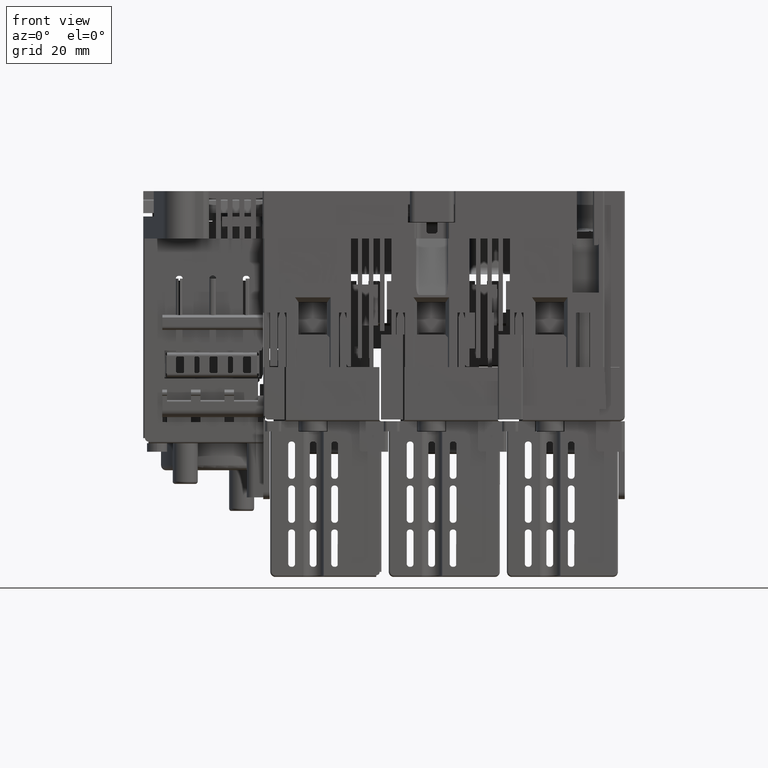
[diagram: clean part render]
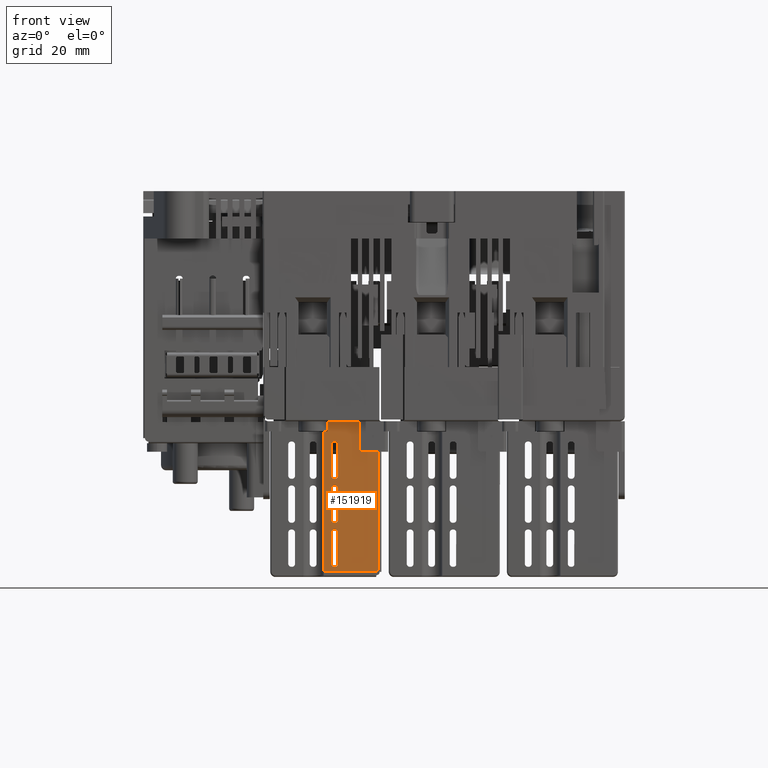
[diagram: same view with one face highlighted and labeled with its STEP entity id]
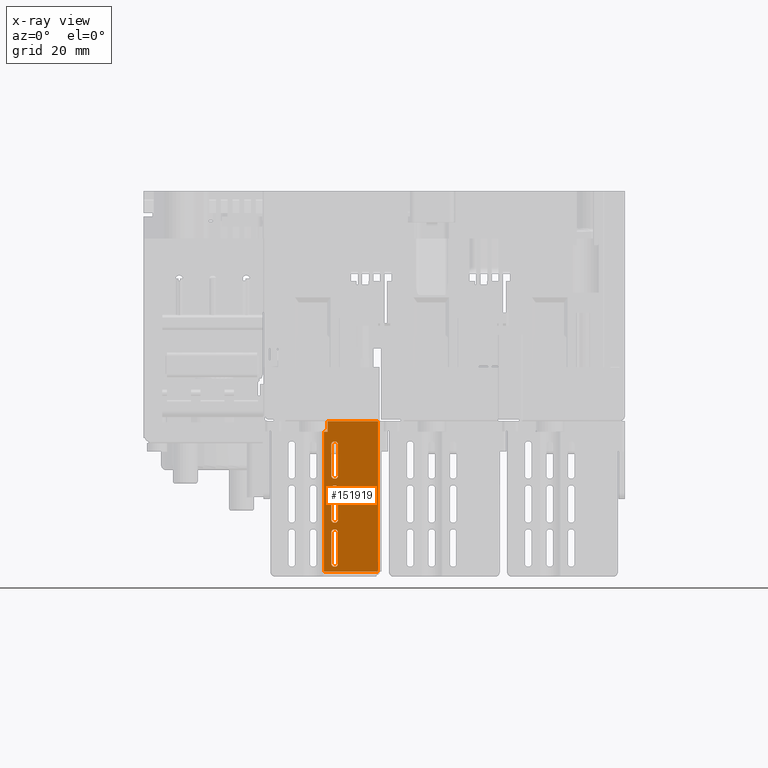
[diagram: x-ray of the same camera — body ghosted, the highlighted face saturated]
A machine part, front view. The second image highlights one B-rep face of the part: STEP entity #151919.
The next image is the same camera in x-ray: the body ghosted, the highlighted face saturated — about 0% of this face is hidden behind the body in this view.
In plain terms, the highlighted planar face has unit normal (0, 1, 0).
Its self-contained STEP definition (entity closure, byte-faithful):
#145148=DIRECTION('',(-1.E0,0.E0,0.E0));
#145149=VECTOR('',#145148,1.549840340681E1);
#145150=CARTESIAN_POINT('',(1.497967156549E2,3.683299690153E2,
7.999609065454E1));
#145151=LINE('',#145150,#145149);
#145152=DIRECTION('',(0.E0,0.E0,1.E0));
#145153=VECTOR('',#145152,4.139988030536E1);
#145154=CARTESIAN_POINT('',(1.342983122481E2,3.683299690153E2,
7.999609065454E1));
#145155=LINE('',#145154,#145153);
#145156=DIRECTION('',(1.E0,0.E0,0.E0));
#145157=VECTOR('',#145156,1.148383971600E0);
#145158=CARTESIAN_POINT('',(1.342983122481E2,3.683299690153E2,
1.213959709599E2));
#145159=LINE('',#145158,#145157);
#145160=DIRECTION('',(0.E0,0.E0,1.E0));
#145161=VECTOR('',#145160,3.100119694600E0);
#145162=CARTESIAN_POINT('',(1.354466962197E2,3.683299690153E2,
1.213959709599E2));
#145163=LINE('',#145162,#145161);
#145164=DIRECTION('',(1.E0,0.E0,0.E0));
#145165=VECTOR('',#145164,1.485001943520E1);
#145166=CARTESIAN_POINT('',(1.354466962197E2,3.683299690153E2,
1.244960906545E2));
#145167=LINE('',#145166,#145165);
#145168=CARTESIAN_POINT('',(1.502967156549E2,3.683299690153E2,
8.049609065453E1));
#145169=CARTESIAN_POINT('',(1.502953362128E2,3.683299690153E2,
8.042646805878E1));
#145170=CARTESIAN_POINT('',(1.502702316992E2,3.683299690153E2,
8.029899881478E1));
#145171=CARTESIAN_POINT('',(1.501593822654E2,3.683299690153E2,
8.013342404407E1));
#145172=CARTESIAN_POINT('',(1.499938074947E2,3.683299690153E2,
8.002257461028E1));
#145173=CARTESIAN_POINT('',(1.498663382507E2,3.683299690153E2,
7.999747009669E1));
#145174=CARTESIAN_POINT('',(1.497967156549E2,3.683299690153E2,
7.999609065454E1));
#145176=CARTESIAN_POINT('',(1.373967156549E2,3.683299690153E2,
1.184960906545E2));
#145177=CARTESIAN_POINT('',(1.372713949825E2,3.683299690153E2,
1.184936076586E2));
#145178=CARTESIAN_POINT('',(1.370419503433E2,3.683299690153E2,
1.184484195342E2));
#145179=CARTESIAN_POINT('',(1.367439157560E2,3.683299690153E2,
1.182488905533E2));
#145180=CARTESIAN_POINT('',(1.365443867752E2,3.683299690153E2,
1.179508559661E2));
#145181=CARTESIAN_POINT('',(1.364991986508E2,3.683299690153E2,
1.177214113269E2));
#145182=CARTESIAN_POINT('',(1.364967156549E2,3.683299690153E2,
1.175960906545E2));
#145184=DIRECTION('',(0.E0,0.E0,-1.E0));
#145185=VECTOR('',#145184,9.199999991375E0);
#145186=CARTESIAN_POINT('',(1.364967156549E2,3.683299690153E2,
1.175960906545E2));
#145187=LINE('',#145186,#145185);
#145188=CARTESIAN_POINT('',(1.364967156549E2,3.683299690153E2,
1.083960906631E2));
#145189=CARTESIAN_POINT('',(1.364991986496E2,3.683299690153E2,
1.082707699908E2));
#145190=CARTESIAN_POINT('',(1.365443867718E2,3.683299690153E2,
1.080413253511E2));
#145191=CARTESIAN_POINT('',(1.367439157498E2,3.683299690153E2,
1.077432907619E2));
#145192=CARTESIAN_POINT('',(1.370419503351E2,3.683299690153E2,
1.075437617783E2));
#145193=CARTESIAN_POINT('',(1.372713949739E2,3.683299690153E2,
1.074985736516E2));
#145194=CARTESIAN_POINT('',(1.373967156462E2,3.683299690153E2,
1.074960906545E2));
#145196=DIRECTION('',(1.E0,0.E0,0.E0));
#145197=VECTOR('',#145196,2.000000086850E-1);
#145198=CARTESIAN_POINT('',(1.373967156462E2,3.683299690153E2,
1.074960906545E2));
#145199=LINE('',#145198,#145197);
#145200=CARTESIAN_POINT('',(1.375967156549E2,3.683299690153E2,
1.074960906545E2));
#145201=CARTESIAN_POINT('',(1.377220363273E2,3.683299690153E2,
1.074985736504E2));
#145202=CARTESIAN_POINT('',(1.379514809665E2,3.683299690153E2,
1.075437617748E2));
#145203=CARTESIAN_POINT('',(1.382495155538E2,3.683299690153E2,
1.077432907557E2));
#145204=CARTESIAN_POINT('',(1.384490445346E2,3.683299690153E2,
1.080413253429E2));
#145205=CARTESIAN_POINT('',(1.384942326590E2,3.683299690153E2,
1.082707699821E2));
#145206=CARTESIAN_POINT('',(1.384967156549E2,3.683299690153E2,
1.083960906545E2));
#145208=DIRECTION('',(0.E0,0.E0,1.E0));
#145209=VECTOR('',#145208,9.199999999981E0);
#145210=CARTESIAN_POINT('',(1.384967156549E2,3.683299690153E2,
1.083960906545E2));
#145211=LINE('',#145210,#145209);
#145212=CARTESIAN_POINT('',(1.384967156549E2,3.683299690153E2,
1.175960906545E2));
#145213=CARTESIAN_POINT('',(1.384942326590E2,3.683299690153E2,
1.177214113268E2));
#145214=CARTESIAN_POINT('',(1.384490445346E2,3.683299690153E2,
1.179508559661E2));
#145215=CARTESIAN_POINT('',(1.382495155537E2,3.683299690153E2,
1.182488905533E2));
#145216=CARTESIAN_POINT('',(1.379514809665E2,3.683299690153E2,
1.184484195342E2));
#145217=CARTESIAN_POINT('',(1.377220363272E2,3.683299690153E2,
1.184936076586E2));
#145218=CARTESIAN_POINT('',(1.375967156549E2,3.683299690153E2,
1.184960906545E2));
#145220=DIRECTION('',(-1.E0,0.E0,0.E0));
#145221=VECTOR('',#145220,2.000000000089E-1);
#145222=CARTESIAN_POINT('',(1.375967156549E2,3.683299690153E2,
1.184960906545E2));
#145223=LINE('',#145222,#145221);
#145224=CARTESIAN_POINT('',(1.373967156549E2,3.683299690153E2,
1.054960906545E2));
#145225=CARTESIAN_POINT('',(1.372713949826E2,3.683299690153E2,
1.054936076586E2));
#145226=CARTESIAN_POINT('',(1.370419503433E2,3.683299690153E2,
1.054484195342E2));
#145227=CARTESIAN_POINT('',(1.367439157561E2,3.683299690153E2,
1.052488905533E2));
#145228=CARTESIAN_POINT('',(1.365443867752E2,3.683299690153E2,
1.049508559661E2));
#145229=CARTESIAN_POINT('',(1.364991986508E2,3.683299690153E2,
1.047214113268E2));
#145230=CARTESIAN_POINT('',(1.364967156549E2,3.683299690153E2,
1.045960906545E2));
#145232=DIRECTION('',(0.E0,0.E0,-1.E0));
#145233=VECTOR('',#145232,9.200000009161E0);
#145234=CARTESIAN_POINT('',(1.364967156549E2,3.683299690153E2,
1.045960906545E2));
#145235=LINE('',#145234,#145233);
#145236=CARTESIAN_POINT('',(1.364967156549E2,3.683299690153E2,
9.539609064532E1));
#145237=CARTESIAN_POINT('',(1.364991986521E2,3.683299690153E2,
9.527076997299E1));
#145238=CARTESIAN_POINT('',(1.365443867789E2,3.683299690153E2,
9.504132533423E1));
#145239=CARTESIAN_POINT('',(1.367439157627E2,3.683299690153E2,
9.474329074900E1));
#145240=CARTESIAN_POINT('',(1.370419503521E2,3.683299690153E2,
9.454376177124E1));
#145241=CARTESIAN_POINT('',(1.372713949917E2,3.683299690153E2,
9.449857364911E1));
#145242=CARTESIAN_POINT('',(1.373967156641E2,3.683299690153E2,
9.449609065453E1));
#145244=DIRECTION('',(1.E0,0.E0,0.E0));
#145245=VECTOR('',#145244,1.999999907584E-1);
#145246=CARTESIAN_POINT('',(1.373967156641E2,3.683299690153E2,
9.449609065453E1));
#145247=LINE('',#145246,#145245);
#145248=CARTESIAN_POINT('',(1.375967156549E2,3.683299690153E2,
9.449609065453E1));
#145249=CARTESIAN_POINT('',(1.377220363272E2,3.683299690153E2,
9.449857365040E1));
#145250=CARTESIAN_POINT('',(1.379514809665E2,3.683299690153E2,
9.454376177487E1));
#145251=CARTESIAN_POINT('',(1.382495155537E2,3.683299690153E2,
9.474329075568E1));
#145252=CARTESIAN_POINT('',(1.384490445346E2,3.683299690153E2,
9.504132534296E1));
#145253=CARTESIAN_POINT('',(1.384942326590E2,3.683299690153E2,
9.527076998218E1));
#145254=CARTESIAN_POINT('',(1.384967156549E2,3.683299690153E2,
9.539609065455E1));
#145256=DIRECTION('',(0.E0,0.E0,1.E0));
#145257=VECTOR('',#145256,9.199999999935E0);
#145258=CARTESIAN_POINT('',(1.384967156549E2,3.683299690153E2,
9.539609065455E1));
#145259=LINE('',#145258,#145257);
#145260=CARTESIAN_POINT('',(1.384967156549E2,3.683299690153E2,
1.045960906545E2));
#145261=CARTESIAN_POINT('',(1.384942326590E2,3.683299690153E2,
1.047214113268E2));
#145262=CARTESIAN_POINT('',(1.384490445346E2,3.683299690153E2,
1.049508559661E2));
#145263=CARTESIAN_POINT('',(1.382495155537E2,3.683299690153E2,
1.052488905533E2));
#145264=CARTESIAN_POINT('',(1.379514809665E2,3.683299690153E2,
1.054484195342E2));
#145265=CARTESIAN_POINT('',(1.377220363273E2,3.683299690153E2,
1.054936076586E2));
#145266=CARTESIAN_POINT('',(1.375967156549E2,3.683299690153E2,
1.054960906545E2));
#145268=DIRECTION('',(-1.E0,0.E0,0.E0));
#145269=VECTOR('',#145268,1.999999999777E-1);
#145270=CARTESIAN_POINT('',(1.375967156549E2,3.683299690153E2,
1.054960906545E2));
#145271=LINE('',#145270,#145269);
#145272=CARTESIAN_POINT('',(1.373967156549E2,3.683299690153E2,
9.249609065454E1));
#145273=CARTESIAN_POINT('',(1.372713949825E2,3.683299690153E2,
9.249360765867E1));
#145274=CARTESIAN_POINT('',(1.370419503433E2,3.683299690153E2,
9.244841953419E1));
#145275=CARTESIAN_POINT('',(1.367439157560E2,3.683299690153E2,
9.224889055338E1));
#145276=CARTESIAN_POINT('',(1.365443867752E2,3.683299690153E2,
9.195085596608E1));
#145277=CARTESIAN_POINT('',(1.364991986508E2,3.683299690153E2,
9.172141132690E1));
#145278=CARTESIAN_POINT('',(1.364967156549E2,3.683299690153E2,
9.159609065456E1));
#145280=DIRECTION('',(0.E0,0.E0,-1.E0));
#145281=VECTOR('',#145280,9.200000000022E0);
#145282=CARTESIAN_POINT('',(1.364967156549E2,3.683299690153E2,
9.159609065456E1));
#145283=LINE('',#145282,#145281);
#145284=CARTESIAN_POINT('',(1.364967156549E2,3.683299690153E2,
8.239609065454E1));
#145285=CARTESIAN_POINT('',(1.364991986508E2,3.683299690153E2,
8.227076998219E1));
#145286=CARTESIAN_POINT('',(1.365443867752E2,3.683299690153E2,
8.204132534298E1));
#145287=CARTESIAN_POINT('',(1.367439157560E2,3.683299690153E2,
8.174329075570E1));
#145288=CARTESIAN_POINT('',(1.370419503433E2,3.683299690153E2,
8.154376177488E1));
#145289=CARTESIAN_POINT('',(1.372713949825E2,3.683299690153E2,
8.149857365041E1));
#145290=CARTESIAN_POINT('',(1.373967156549E2,3.683299690153E2,
8.149609065454E1));
#145292=DIRECTION('',(1.E0,0.E0,0.E0));
#145293=VECTOR('',#145292,2.000000000107E-1);
#145294=CARTESIAN_POINT('',(1.373967156549E2,3.683299690153E2,
8.149609065454E1));
#145295=LINE('',#145294,#145293);
#145296=CARTESIAN_POINT('',(1.375967156549E2,3.683299690153E2,
8.149609065454E1));
#145297=CARTESIAN_POINT('',(1.377220363273E2,3.683299690153E2,
8.149857365041E1));
#145298=CARTESIAN_POINT('',(1.379514809665E2,3.683299690153E2,
8.154376177488E1));
#145299=CARTESIAN_POINT('',(1.382495155537E2,3.683299690153E2,
8.174329075569E1));
#145300=CARTESIAN_POINT('',(1.384490445346E2,3.683299690153E2,
8.204132534297E1));
#145301=CARTESIAN_POINT('',(1.384942326590E2,3.683299690153E2,
8.227076998218E1));
#145302=CARTESIAN_POINT('',(1.384967156549E2,3.683299690153E2,
8.239609065454E1));
#145304=DIRECTION('',(0.E0,0.E0,1.E0));
#145305=VECTOR('',#145304,9.200000000004E0);
#145306=CARTESIAN_POINT('',(1.384967156549E2,3.683299690153E2,
8.239609065454E1));
#145307=LINE('',#145306,#145305);
#145308=CARTESIAN_POINT('',(1.384967156549E2,3.683299690153E2,
9.159609065455E1));
#145309=CARTESIAN_POINT('',(1.384942326590E2,3.683299690153E2,
9.172141132690E1));
#145310=CARTESIAN_POINT('',(1.384490445346E2,3.683299690153E2,
9.195085596611E1));
#145311=CARTESIAN_POINT('',(1.382495155537E2,3.683299690153E2,
9.224889055339E1));
#145312=CARTESIAN_POINT('',(1.379514809665E2,3.683299690153E2,
9.244841953420E1));
#145313=CARTESIAN_POINT('',(1.377220363273E2,3.683299690153E2,
9.249360765867E1));
#145314=CARTESIAN_POINT('',(1.375967156549E2,3.683299690153E2,
9.249609065454E1));
#145316=DIRECTION('',(-1.E0,0.E0,0.E0));
#145317=VECTOR('',#145316,2.000000000054E-1);
#145318=CARTESIAN_POINT('',(1.375967156549E2,3.683299690153E2,
9.249609065454E1));
#145319=LINE('',#145318,#145317);
#145332=DIRECTION('',(0.E0,0.E0,1.E0));
#145333=VECTOR('',#145332,4.399999999997E1);
#145334=CARTESIAN_POINT('',(1.502967156549E2,3.683299690153E2,
8.049609065453E1));
#145335=LINE('',#145334,#145333);
#149722=CARTESIAN_POINT('',(1.497967156549E2,3.683299690153E2,
7.999609065454E1));
#149723=VERTEX_POINT('',#149722);
#149724=CARTESIAN_POINT('',(1.342983122481E2,3.683299690153E2,
7.999609065454E1));
#149725=VERTEX_POINT('',#149724);
#149726=CARTESIAN_POINT('',(1.342983122481E2,3.683299690153E2,
1.213959709599E2));
#149727=VERTEX_POINT('',#149726);
#149728=CARTESIAN_POINT('',(1.354466962197E2,3.683299690153E2,
1.213959709599E2));
#149729=VERTEX_POINT('',#149728);
#149730=CARTESIAN_POINT('',(1.354466962197E2,3.683299690153E2,
1.244960906545E2));
#149731=VERTEX_POINT('',#149730);
#149732=CARTESIAN_POINT('',(1.502967156549E2,3.683299690153E2,
1.244960906545E2));
#149733=VERTEX_POINT('',#149732);
#149734=VERTEX_POINT('',#145168);
#149735=VERTEX_POINT('',#145176);
#149736=VERTEX_POINT('',#145182);
#149737=CARTESIAN_POINT('',(1.364967156549E2,3.683299690153E2,
1.083960906631E2));
#149738=VERTEX_POINT('',#149737);
#149739=VERTEX_POINT('',#145194);
#149740=CARTESIAN_POINT('',(1.375967156549E2,3.683299690153E2,
1.074960906545E2));
#149741=VERTEX_POINT('',#149740);
#149742=VERTEX_POINT('',#145206);
#149743=CARTESIAN_POINT('',(1.384967156549E2,3.683299690153E2,
1.175960906545E2));
#149744=VERTEX_POINT('',#149743);
#149745=VERTEX_POINT('',#145218);
#149746=VERTEX_POINT('',#145224);
#149747=VERTEX_POINT('',#145230);
#149748=CARTESIAN_POINT('',(1.364967156549E2,3.683299690153E2,
9.539609064532E1));
#149749=VERTEX_POINT('',#149748);
#149750=VERTEX_POINT('',#145242);
#149751=CARTESIAN_POINT('',(1.375967156549E2,3.683299690153E2,
9.449609065453E1));
#149752=VERTEX_POINT('',#149751);
#149753=VERTEX_POINT('',#145254);
#149754=CARTESIAN_POINT('',(1.384967156549E2,3.683299690153E2,
1.045960906545E2));
#149755=VERTEX_POINT('',#149754);
#149756=VERTEX_POINT('',#145266);
#149757=VERTEX_POINT('',#145272);
#149758=VERTEX_POINT('',#145278);
#149759=CARTESIAN_POINT('',(1.364967156549E2,3.683299690153E2,
8.239609065454E1));
#149760=VERTEX_POINT('',#149759);
#149761=VERTEX_POINT('',#145290);
#149762=CARTESIAN_POINT('',(1.375967156549E2,3.683299690153E2,
8.149609065454E1));
#149763=VERTEX_POINT('',#149762);
#149764=VERTEX_POINT('',#145302);
#149765=CARTESIAN_POINT('',(1.384967156549E2,3.683299690153E2,
9.159609065455E1));
#149766=VERTEX_POINT('',#149765);
#149767=VERTEX_POINT('',#145314);
#151845=CARTESIAN_POINT('',(1.422975139515E2,3.683299690153E2,
1.022460906545E2));
#151846=DIRECTION('',(0.E0,1.E0,0.E0));
#151847=DIRECTION('',(-1.E0,0.E0,0.E0));
#151848=AXIS2_PLACEMENT_3D('',#151845,#151846,#151847);
#151849=PLANE('',#151848);
#151850=ORIENTED_EDGE('',*,*,#151835,.T.);
#151852=ORIENTED_EDGE('',*,*,#151851,.T.);
#151854=ORIENTED_EDGE('',*,*,#151853,.T.);
#151856=ORIENTED_EDGE('',*,*,#151855,.T.);
#151858=ORIENTED_EDGE('',*,*,#151857,.T.);
#151860=ORIENTED_EDGE('',*,*,#151859,.F.);
#151862=ORIENTED_EDGE('',*,*,#151861,.T.);
#151863=EDGE_LOOP('',(#151850,#151852,#151854,#151856,#151858,#151860,#151862));
#151864=FACE_OUTER_BOUND('',#151863,.F.);
#151866=ORIENTED_EDGE('',*,*,#151865,.T.);
#151868=ORIENTED_EDGE('',*,*,#151867,.T.);
#151870=ORIENTED_EDGE('',*,*,#151869,.T.);
#151872=ORIENTED_EDGE('',*,*,#151871,.T.);
#151874=ORIENTED_EDGE('',*,*,#151873,.T.);
#151876=ORIENTED_EDGE('',*,*,#151875,.T.);
#151878=ORIENTED_EDGE('',*,*,#151877,.T.);
#151880=ORIENTED_EDGE('',*,*,#151879,.T.);
#151881=EDGE_LOOP('',(#151866,#151868,#151870,#151872,#151874,#151876,#151878,
#151880));
#151882=FACE_BOUND('',#151881,.F.);
#151884=ORIENTED_EDGE('',*,*,#151883,.T.);
#151886=ORIENTED_EDGE('',*,*,#151885,.T.);
#151888=ORIENTED_EDGE('',*,*,#151887,.T.);
#151890=ORIENTED_EDGE('',*,*,#151889,.T.);
#151892=ORIENTED_EDGE('',*,*,#151891,.T.);
#151894=ORIENTED_EDGE('',*,*,#151893,.T.);
#151896=ORIENTED_EDGE('',*,*,#151895,.T.);
#151898=ORIENTED_EDGE('',*,*,#151897,.T.);
#151899=EDGE_LOOP('',(#151884,#151886,#151888,#151890,#151892,#151894,#151896,
#151898));
#151900=FACE_BOUND('',#151899,.F.);
#151902=ORIENTED_EDGE('',*,*,#151901,.T.);
#151904=ORIENTED_EDGE('',*,*,#151903,.T.);
#151906=ORIENTED_EDGE('',*,*,#151905,.T.);
#151908=ORIENTED_EDGE('',*,*,#151907,.T.);
#151910=ORIENTED_EDGE('',*,*,#151909,.T.);
#151912=ORIENTED_EDGE('',*,*,#151911,.T.);
#151914=ORIENTED_EDGE('',*,*,#151913,.T.);
#151916=ORIENTED_EDGE('',*,*,#151915,.T.);
#151917=EDGE_LOOP('',(#151902,#151904,#151906,#151908,#151910,#151912,#151914,
#151916));
#151918=FACE_BOUND('',#151917,.F.);
#151919=ADVANCED_FACE('',(#151864,#151882,#151900,#151918),#151849,.F.);
#145175=B_SPLINE_CURVE_WITH_KNOTS('',3,(#145168,#145169,#145170,#145171,#145172,
#145173,#145174),.UNSPECIFIED.,.F.,.F.,(4,1,1,1,4),(0.E0,2.5E-1,5.E-1,7.5E-1,
1.E0),.UNSPECIFIED.);
#145183=B_SPLINE_CURVE_WITH_KNOTS('',3,(#145176,#145177,#145178,#145179,#145180,
#145181,#145182),.UNSPECIFIED.,.F.,.F.,(4,1,1,1,4),(0.E0,2.5E-1,5.E-1,7.5E-1,
1.E0),.UNSPECIFIED.);
#145195=B_SPLINE_CURVE_WITH_KNOTS('',3,(#145188,#145189,#145190,#145191,#145192,
#145193,#145194),.UNSPECIFIED.,.F.,.F.,(4,1,1,1,4),(0.E0,2.5E-1,5.E-1,7.5E-1,
1.E0),.UNSPECIFIED.);
#145207=B_SPLINE_CURVE_WITH_KNOTS('',3,(#145200,#145201,#145202,#145203,#145204,
#145205,#145206),.UNSPECIFIED.,.F.,.F.,(4,1,1,1,4),(0.E0,2.5E-1,5.E-1,7.5E-1,
1.E0),.UNSPECIFIED.);
#145219=B_SPLINE_CURVE_WITH_KNOTS('',3,(#145212,#145213,#145214,#145215,#145216,
#145217,#145218),.UNSPECIFIED.,.F.,.F.,(4,1,1,1,4),(0.E0,2.5E-1,5.E-1,7.5E-1,
1.E0),.UNSPECIFIED.);
#145231=B_SPLINE_CURVE_WITH_KNOTS('',3,(#145224,#145225,#145226,#145227,#145228,
#145229,#145230),.UNSPECIFIED.,.F.,.F.,(4,1,1,1,4),(0.E0,2.5E-1,5.E-1,7.5E-1,
1.E0),.UNSPECIFIED.);
#145243=B_SPLINE_CURVE_WITH_KNOTS('',3,(#145236,#145237,#145238,#145239,#145240,
#145241,#145242),.UNSPECIFIED.,.F.,.F.,(4,1,1,1,4),(0.E0,2.5E-1,5.E-1,7.5E-1,
1.E0),.UNSPECIFIED.);
#145255=B_SPLINE_CURVE_WITH_KNOTS('',3,(#145248,#145249,#145250,#145251,#145252,
#145253,#145254),.UNSPECIFIED.,.F.,.F.,(4,1,1,1,4),(0.E0,2.5E-1,5.E-1,7.5E-1,
1.E0),.UNSPECIFIED.);
#145267=B_SPLINE_CURVE_WITH_KNOTS('',3,(#145260,#145261,#145262,#145263,#145264,
#145265,#145266),.UNSPECIFIED.,.F.,.F.,(4,1,1,1,4),(0.E0,2.5E-1,5.E-1,7.5E-1,
1.E0),.UNSPECIFIED.);
#145279=B_SPLINE_CURVE_WITH_KNOTS('',3,(#145272,#145273,#145274,#145275,#145276,
#145277,#145278),.UNSPECIFIED.,.F.,.F.,(4,1,1,1,4),(0.E0,2.5E-1,5.E-1,7.5E-1,
1.E0),.UNSPECIFIED.);
#145291=B_SPLINE_CURVE_WITH_KNOTS('',3,(#145284,#145285,#145286,#145287,#145288,
#145289,#145290),.UNSPECIFIED.,.F.,.F.,(4,1,1,1,4),(0.E0,2.5E-1,5.E-1,7.5E-1,
1.E0),.UNSPECIFIED.);
#145303=B_SPLINE_CURVE_WITH_KNOTS('',3,(#145296,#145297,#145298,#145299,#145300,
#145301,#145302),.UNSPECIFIED.,.F.,.F.,(4,1,1,1,4),(0.E0,2.5E-1,5.E-1,7.5E-1,
1.E0),.UNSPECIFIED.);
#145315=B_SPLINE_CURVE_WITH_KNOTS('',3,(#145308,#145309,#145310,#145311,#145312,
#145313,#145314),.UNSPECIFIED.,.F.,.F.,(4,1,1,1,4),(0.E0,2.5E-1,5.E-1,7.5E-1,
1.E0),.UNSPECIFIED.);
#151835=EDGE_CURVE('',#149723,#149725,#145151,.T.);
#151851=EDGE_CURVE('',#149725,#149727,#145155,.T.);
#151853=EDGE_CURVE('',#149727,#149729,#145159,.T.);
#151855=EDGE_CURVE('',#149729,#149731,#145163,.T.);
#151857=EDGE_CURVE('',#149731,#149733,#145167,.T.);
#151859=EDGE_CURVE('',#149734,#149733,#145335,.T.);
#151861=EDGE_CURVE('',#149734,#149723,#145175,.T.);
#151865=EDGE_CURVE('',#149735,#149736,#145183,.T.);
#151867=EDGE_CURVE('',#149736,#149738,#145187,.T.);
#151869=EDGE_CURVE('',#149738,#149739,#145195,.T.);
#151871=EDGE_CURVE('',#149739,#149741,#145199,.T.);
#151873=EDGE_CURVE('',#149741,#149742,#145207,.T.);
#151875=EDGE_CURVE('',#149742,#149744,#145211,.T.);
#151877=EDGE_CURVE('',#149744,#149745,#145219,.T.);
#151879=EDGE_CURVE('',#149745,#149735,#145223,.T.);
#151883=EDGE_CURVE('',#149746,#149747,#145231,.T.);
#151885=EDGE_CURVE('',#149747,#149749,#145235,.T.);
#151887=EDGE_CURVE('',#149749,#149750,#145243,.T.);
#151889=EDGE_CURVE('',#149750,#149752,#145247,.T.);
#151891=EDGE_CURVE('',#149752,#149753,#145255,.T.);
#151893=EDGE_CURVE('',#149753,#149755,#145259,.T.);
#151895=EDGE_CURVE('',#149755,#149756,#145267,.T.);
#151897=EDGE_CURVE('',#149756,#149746,#145271,.T.);
#151901=EDGE_CURVE('',#149757,#149758,#145279,.T.);
#151903=EDGE_CURVE('',#149758,#149760,#145283,.T.);
#151905=EDGE_CURVE('',#149760,#149761,#145291,.T.);
#151907=EDGE_CURVE('',#149761,#149763,#145295,.T.);
#151909=EDGE_CURVE('',#149763,#149764,#145303,.T.);
#151911=EDGE_CURVE('',#149764,#149766,#145307,.T.);
#151913=EDGE_CURVE('',#149766,#149767,#145315,.T.);
#151915=EDGE_CURVE('',#149767,#149757,#145319,.T.);